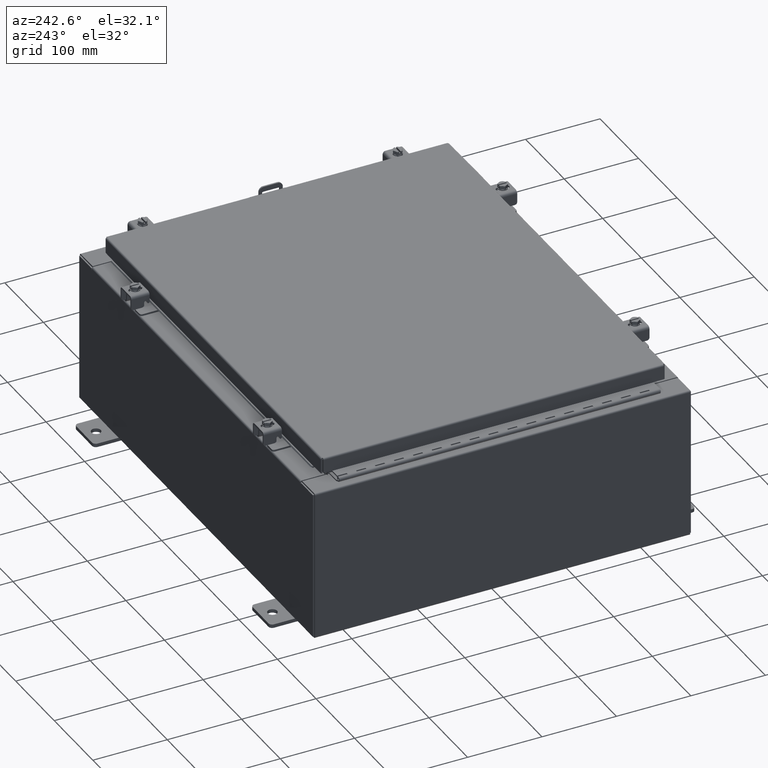
[diagram: clean part render]
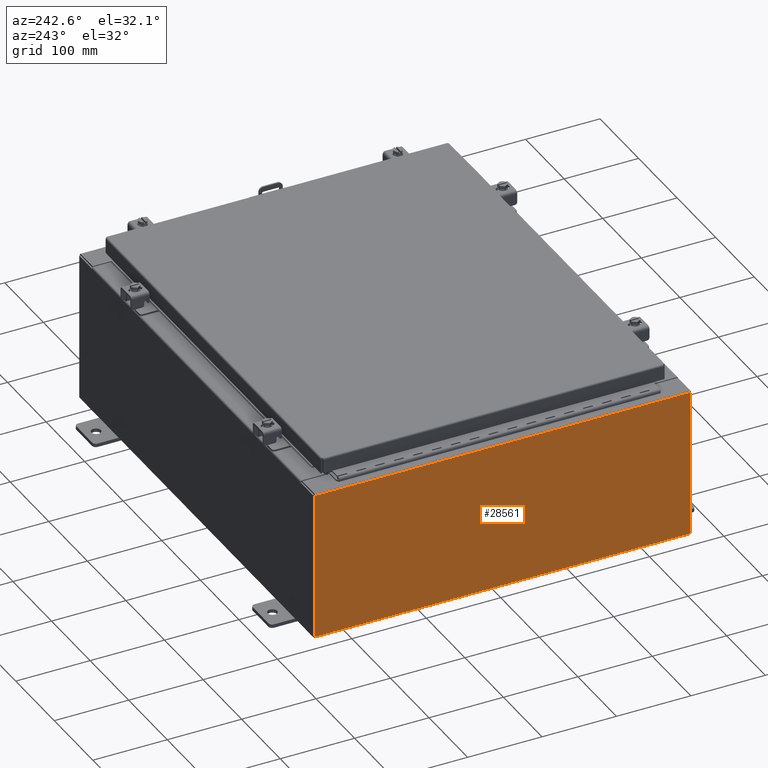
[diagram: same view with one face highlighted and labeled with its STEP entity id]
A machine part, auxiliary view. The second image highlights one B-rep face of the part: STEP entity #28561.
In plain terms, the highlighted planar face has unit normal (1, 0, 0).
Its self-contained STEP definition (entity closure, byte-faithful):
#350 = DIRECTION ( 'NONE',  ( 1.000000000000000000, 0.0000000000000000000, 3.584876173029202900E-015 ) ) ;
#604 = CARTESIAN_POINT ( 'NONE',  ( -12.00000000000003200, -9.925300000000000000, 7.837599999999999200 ) ) ;
#1797 = LINE ( 'NONE', #27189, #26029 ) ;
#4821 = CARTESIAN_POINT ( 'NONE',  ( -12.00000000000003200, 9.925299999999996500, 7.837599999999999200 ) ) ;
#5235 = ORIENTED_EDGE ( 'NONE', *, *, #15641, .T. ) ;
#6346 = FACE_OUTER_BOUND ( 'NONE', #16259, .T. ) ;
#7108 = PLANE ( 'NONE',  #13127 ) ;
#8661 = EDGE_CURVE ( 'NONE', #12086, #13255, #14924, .T. ) ;
#10445 = LINE ( 'NONE', #29191, #28603 ) ;
#11464 = CARTESIAN_POINT ( 'NONE',  ( -12.00000000000000400, -9.925300000000000000, -4.601632553852869700E-014 ) ) ;
#12086 = VERTEX_POINT ( 'NONE', #24224 ) ;
#12249 = EDGE_CURVE ( 'NONE', #12086, #21389, #10445, .T. ) ;
#13127 = AXIS2_PLACEMENT_3D ( 'NONE', #25332, #350, #16275 ) ;
#13255 = VERTEX_POINT ( 'NONE', #24060 ) ;
#13559 = DIRECTION ( 'NONE',  ( 3.584876173029202900E-015, 2.757597056176310300E-016, -1.000000000000000000 ) ) ;
#14924 = LINE ( 'NONE', #11464, #20246 ) ;
#15641 = EDGE_CURVE ( 'NONE', #13255, #18764, #28216, .T. ) ;
#16259 = EDGE_LOOP ( 'NONE', ( #5235, #22040, #24995, #21312 ) ) ;
#16275 = DIRECTION ( 'NONE',  ( 3.584876173029202900E-015, 0.0000000000000000000, -1.000000000000000000 ) ) ;
#17530 = EDGE_CURVE ( 'NONE', #18764, #21389, #1797, .T. ) ;
#18764 = VERTEX_POINT ( 'NONE', #4821 ) ;
#18815 = DIRECTION ( 'NONE',  ( 0.0000000000000000000, 1.000000000000000000, 0.0000000000000000000 ) ) ;
#20121 = DIRECTION ( 'NONE',  ( -0.0000000000000000000, 1.000000000000000000, -0.0000000000000000000 ) ) ;
#20246 = VECTOR ( 'NONE', #25100, 39.37007874015748100 ) ;
#21312 = ORIENTED_EDGE ( 'NONE', *, *, #8661, .T. ) ;
#21389 = VERTEX_POINT ( 'NONE', #21991 ) ;
#21991 = CARTESIAN_POINT ( 'NONE',  ( -12.00000000000000400, 9.925300000000000000, 0.01299999999999983600 ) ) ;
#22040 = ORIENTED_EDGE ( 'NONE', *, *, #17530, .T. ) ;
#22140 = VECTOR ( 'NONE', #18815, 39.37007874015748100 ) ;
#24060 = CARTESIAN_POINT ( 'NONE',  ( -12.00000000000003200, -9.925300000000000000, 7.837599999999999200 ) ) ;
#24224 = CARTESIAN_POINT ( 'NONE',  ( -12.00000000000000400, -9.925299999999998200, 0.01299999999999984700 ) ) ;
#24995 = ORIENTED_EDGE ( 'NONE', *, *, #12249, .F. ) ;
#25100 = DIRECTION ( 'NONE',  ( -3.584876173029202900E-015, -2.757597056176310300E-016, 1.000000000000000000 ) ) ;
#25332 = CARTESIAN_POINT ( 'NONE',  ( -12.00000000000000400, 0.0000000000000000000, -4.327932773236202500E-014 ) ) ;
#26029 = VECTOR ( 'NONE', #13559, 39.37007874015748100 ) ;
#27189 = CARTESIAN_POINT ( 'NONE',  ( -12.00000000000000400, 9.925300000000000000, -4.054232992619534800E-014 ) ) ;
#28216 = LINE ( 'NONE', #604, #22140 ) ;
#28561 = ADVANCED_FACE ( 'NONE', ( #6346 ), #7108, .F. ) ;
#28603 = VECTOR ( 'NONE', #20121, 39.37007874015748100 ) ;
#29191 = CARTESIAN_POINT ( 'NONE',  ( -12.00000000000000400, 9.925299999999998200, 0.01299999999999984700 ) ) ;